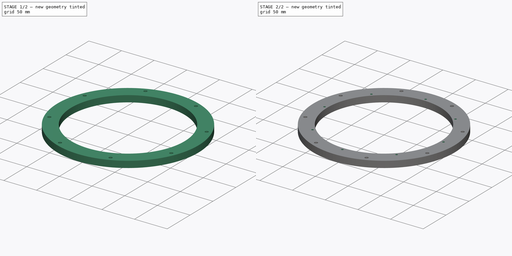
[diagram: build sequence overview — one tinted view per stage of 2, left to right]
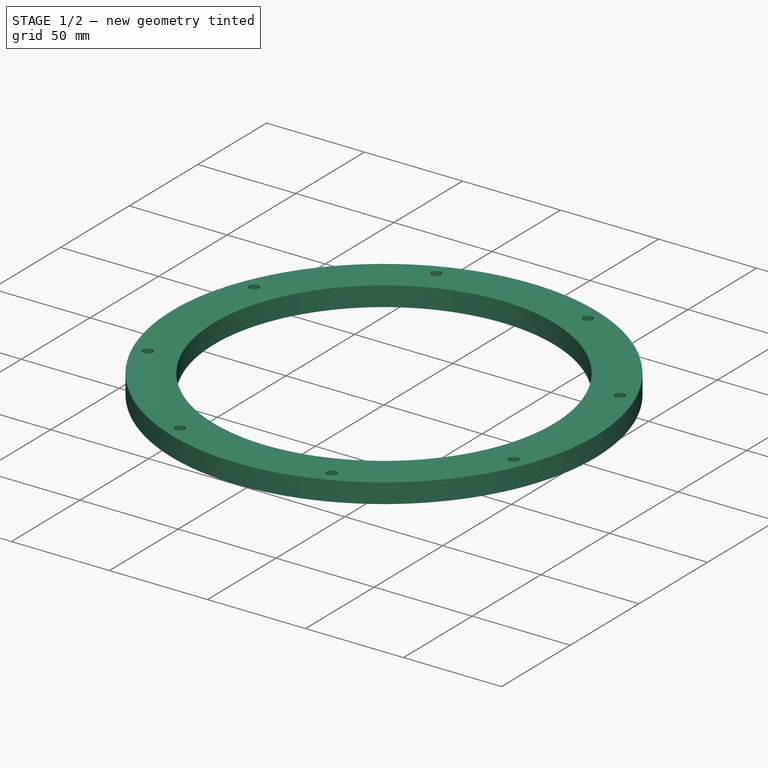
[diagram: stage 1 of 2 — iso view after this stage's code; geometry added in this stage tinted green]
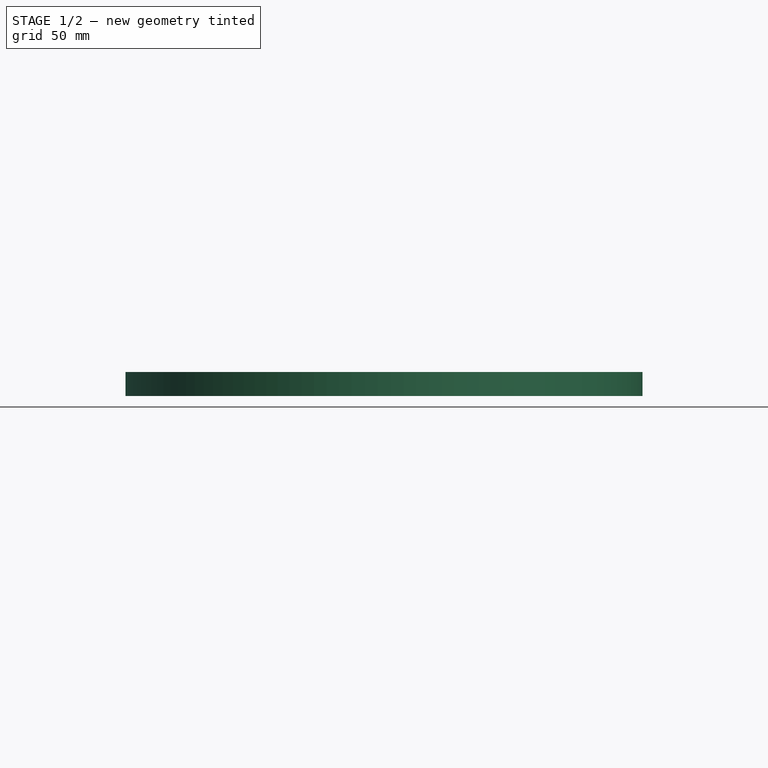
[diagram: stage 1 of 2 — front view after this stage's code; geometry added in this stage tinted green]
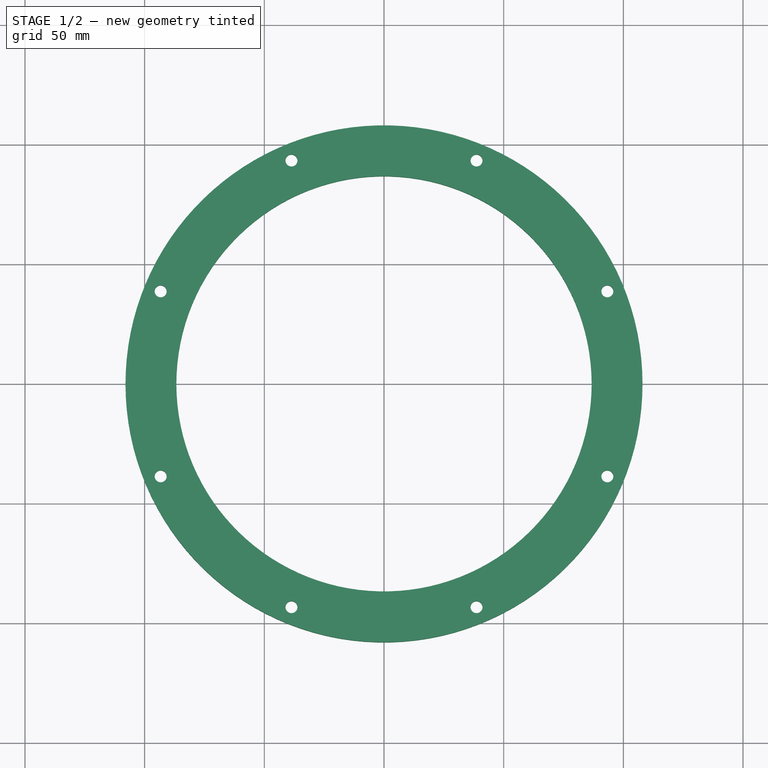
[diagram: stage 1 of 2 — top view after this stage's code; geometry added in this stage tinted green]
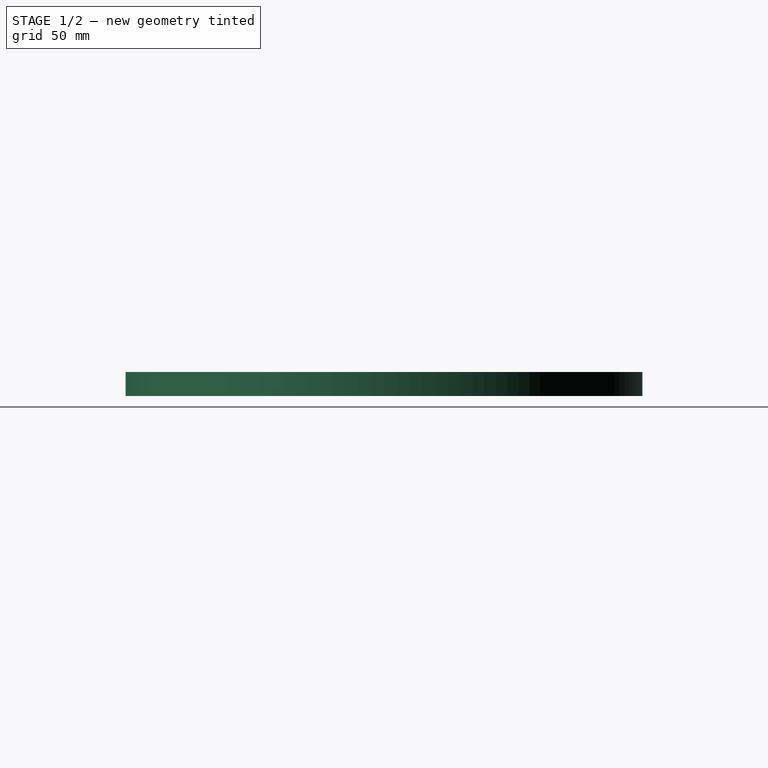
[diagram: stage 1 of 2 — right view after this stage's code; geometry added in this stage tinted green]
FCSTD DOCUMENT  (FreeCAD 0.19R24276 (Git))
Label: Out_gear_holder_for_CNC
License: All rights reserved
LicenseURL: http://en.wikipedia.org/wiki/All_rights_reserved
objects: Sketcher::SketchObject×2, PartDesign::Pad×1, PartDesign::Pocket×1, PartDesign::Body×1
note: 7 computed .brp shape members not serialized (recipe doc carries the construction recipe); baked Part::Feature solids carry a one-line shape summary decoded from their .brp

FEATURE [Sketcher::SketchObject] Sketch
  FullyConstrained = false
  MapMode = 5
  Support = -> [XY_Plane]
  sketch-geometry (17):
    g0: LineSegment StartX=0 StartY=0 StartZ=0 EndX=64.3467 EndY=64.3467 EndZ=0
    g1: Circle CenterX=0 CenterY=0 CenterZ=0 NormalX=0 NormalY=0 NormalZ=1 AngleXU=0 Radius=91
    g2: Circle CenterX=64.3467 CenterY=64.3467 CenterZ=0 NormalX=0 NormalY=0 NormalZ=1 AngleXU=0 Radius=1.5625
    g3: LineSegment StartX=0 StartY=0 StartZ=0 EndX=-1.5e-15 EndY=91 EndZ=0
    g4: LineSegment StartX=0 StartY=0 StartZ=0 EndX=91 EndY=0 EndZ=0
    g5: Circle CenterX=-1.5e-15 CenterY=91 CenterZ=0 NormalX=0 NormalY=0 NormalZ=1 AngleXU=0 Radius=1.5625
    g6: Circle CenterX=91 CenterY=0 CenterZ=0 NormalX=0 NormalY=0 NormalZ=1 AngleXU=0 Radius=1.5625
    g7: Circle CenterX=64.3467 CenterY=-64.3467 CenterZ=0 NormalX=0 NormalY=0 NormalZ=1 AngleXU=0 Radius=1.5625
    g8: Circle CenterX=-1.5e-15 CenterY=-91 CenterZ=0 NormalX=0 NormalY=0 NormalZ=1 AngleXU=0 Radius=1.5625
    g9: LineSegment StartX=0 StartY=0 StartZ=0 EndX=-1.5e-15 EndY=-91 EndZ=0
    g10: LineSegment StartX=0 StartY=0 StartZ=0 EndX=64.3467 EndY=-64.3467 EndZ=0
    g11: LineSegment StartX=0 StartY=0 StartZ=0 EndX=-64.3467 EndY=-64.3467 EndZ=0
    g12: LineSegment StartX=0 StartY=0 StartZ=0 EndX=-91 EndY=0 EndZ=0
    g13: LineSegment StartX=0 StartY=0 StartZ=0 EndX=-64.3467 EndY=64.3467 EndZ=0
    g14: Circle CenterX=-91 CenterY=0 CenterZ=0 NormalX=0 NormalY=0 NormalZ=1 AngleXU=0 Radius=1.5625
    g15: Circle CenterX=-64.3467 CenterY=-64.3467 CenterZ=0 NormalX=0 NormalY=0 NormalZ=1 AngleXU=0 Radius=1.5625
    g16: Circle CenterX=-64.3467 CenterY=64.3467 CenterZ=0 NormalX=0 NormalY=0 NormalZ=1 AngleXU=0 Radius=1.5625
  constraints (27):
    c: Coincident(g0,g-1)
    c: Coincident(g1,g-1)
    c: Diameter(g1) = 182
    c: PointOnObject(g0,g1)
    c: Coincident(g2,g0)
    c: Coincident(g3,g-1)
    c: Coincident(g4,g-1)
    c: PointOnObject(g4,g1)
    c: PointOnObject(g3,g1)
    c: Coincident(g5,g3)
    c: Coincident(g6,g4)
    c: Equal(g6,g2)
    c: Equal(g2,g5)
    c: Angle(g4,g-1) = 0
    c: Angle(g-1,g0) = 0.785398
    c: Angle(g0,g3) = 0.785398
    c: Coincident(g7,g10)
    c: Coincident(g8,g9)
    c: Equal(g7,g8)
    c: Angle(g10,g9) = -0.785398
    c: Coincident(g14,g12)
    c: Coincident(g15,g11)
    c: Diameter(g16) = 3.125
    c: Equal(g5,g16)
    c: Equal(g7,g6)
    c: Equal(g14,g16)
    c: Equal(g15,g14)
FEATURE [Sketcher::SketchObject] Sketch001
  FullyConstrained = false
  MapMode = 5
  Placement = pos=(0,0,0) rot=(1,0,0;3.14159rad)
  sketch-geometry (20):
    g0: Circle CenterX=0 CenterY=0 CenterZ=0 NormalX=0 NormalY=0 NormalZ=1 AngleXU=0 Radius=95
    g1: Circle CenterX=0 CenterY=0 CenterZ=0 NormalX=0 NormalY=0 NormalZ=1 AngleXU=0 Radius=86.75
    g2: Circle CenterX=0 CenterY=0 CenterZ=0 NormalX=0 NormalY=0 NormalZ=1 AngleXU=0 Radius=108
    g3: Circle CenterX=0 CenterY=0 CenterZ=0 NormalX=0 NormalY=0 NormalZ=1 AngleXU=0 Radius=101
    g4: LineSegment StartX=0 StartY=0 StartZ=0 EndX=93.3118 EndY=38.651 EndZ=0
    g5: LineSegment StartX=0 StartY=0 StartZ=0 EndX=-93.3118 EndY=38.651 EndZ=0
    g6: LineSegment StartX=0 StartY=0 StartZ=0 EndX=-93.3118 EndY=-38.651 EndZ=0
    g7: LineSegment StartX=0 StartY=0 StartZ=0 EndX=38.651 EndY=93.3118 EndZ=0
    g8: LineSegment StartX=0 StartY=0 StartZ=0 EndX=-38.651 EndY=-93.3118 EndZ=0
    g9: LineSegment StartX=0 StartY=0 StartZ=0 EndX=-38.651 EndY=93.3118 EndZ=0
    g10: LineSegment StartX=0 StartY=0 StartZ=0 EndX=38.651 EndY=-93.3118 EndZ=0
    g11: LineSegment StartX=0 StartY=0 StartZ=0 EndX=93.3118 EndY=-38.651 EndZ=0
    g12: Circle CenterX=38.651 CenterY=93.3118 CenterZ=0 NormalX=0 NormalY=0 NormalZ=1 AngleXU=0 Radius=2.5
    g13: Circle CenterX=93.3118 CenterY=38.651 CenterZ=0 NormalX=0 NormalY=0 NormalZ=1 AngleXU=0 Radius=2.5
    g14: Circle CenterX=93.3118 CenterY=-38.651 CenterZ=0 NormalX=0 NormalY=0 NormalZ=1 AngleXU=0 Radius=2.5
    g15: Circle CenterX=38.651 CenterY=-93.3118 CenterZ=0 NormalX=0 NormalY=0 NormalZ=1 AngleXU=0 Radius=2.5
    g16: Circle CenterX=-38.651 CenterY=93.3118 CenterZ=0 NormalX=0 NormalY=0 NormalZ=1 AngleXU=0 Radius=2.5
    g17: Circle CenterX=-93.3118 CenterY=38.651 CenterZ=0 NormalX=0 NormalY=0 NormalZ=1 AngleXU=0 Radius=2.5
    g18: Circle CenterX=-93.3118 CenterY=-38.651 CenterZ=0 NormalX=0 NormalY=0 NormalZ=1 AngleXU=0 Radius=2.5
    g19: Circle CenterX=-38.651 CenterY=-93.3118 CenterZ=0 NormalX=0 NormalY=0 NormalZ=1 AngleXU=0 Radius=2.5
  constraints (44):
    c: Coincident(g0,g-1)
    c: Diameter(g0) = 190
    c: Coincident(g1,g0)
    c: Diameter(g1) = 173.5
    c: Coincident(g2,g1)
    c: Diameter(g2) = 216
    c: Coincident(g3,g1)
    c: Diameter(g3) = 202
    c: Coincident(g4,g1)
    c: Coincident(g5,g1)
    c: Coincident(g6,g1)
    c: Parallel(g6,g4)
    c: Coincident(g7,g1)
    c: Coincident(g8,g1)
    c: Parallel(g8,g7)
    c: Coincident(g9,g1)
    c: Coincident(g10,g1)
    c: Parallel(g10,g9)
    c: PointOnObject(g7,g3)
    c: PointOnObject(g4,g3)
    c: PointOnObject(g9,g3)
    c: PointOnObject(g5,g3)
    c: PointOnObject(g6,g3)
    c: PointOnObject(g8,g3)
    c: PointOnObject(g10,g3)
    c: Coincident(g11,g1)
    c: Parallel(g5,g11)
    c: PointOnObject(g11,g3)
    c: Angle(g-1,g4) = 0.392699
    c: Angle(g4,g7) = 0.785398
    c: Angle(g11,g-1) = 0.392699
    c: Angle(g10,g11) = 0.785398
    c: Coincident(g12,g7)
    c: Coincident(g13,g4)
    c: Coincident(g14,g11)
    c: Coincident(g15,g10)
    c: Diameter(g15) = 5
    c: Equal(g15,g14)
    c: Equal(g15,g13)
    c: Equal(g15,g12)
    c: Diameter(g19) = 5
    c: Equal(g19,g18)
    c: Equal(g19,g17)
    c: Equal(g19,g16)
FEATURE [PartDesign::Pad] Pad
  Direction = (1,1,1)
  Length = 10
  Length2 = 100
  Placement = pos=(0,0,0) rot=(1,0,0;3.14159rad)
  Profile = -> Sketch001
  Type = 0
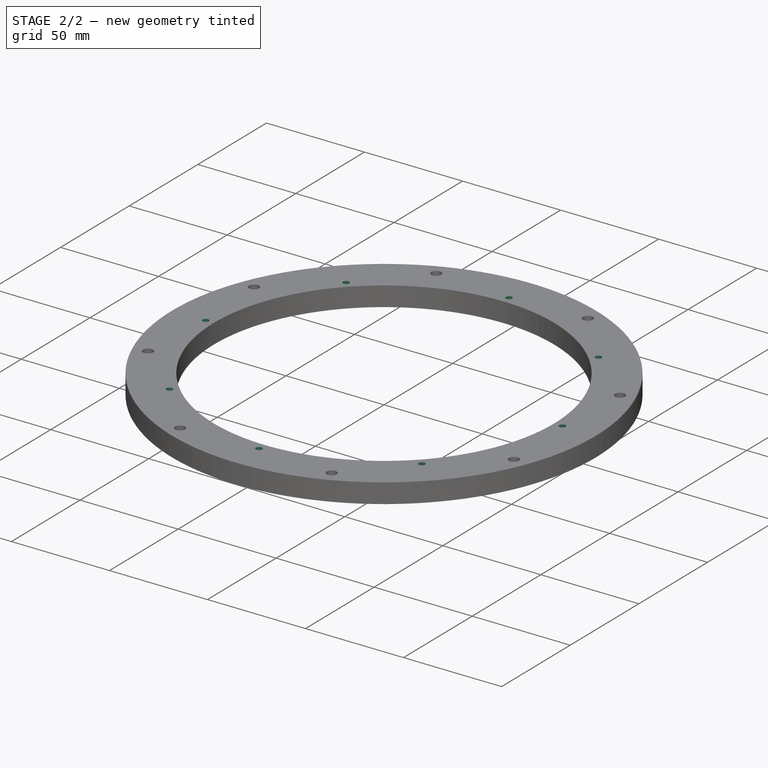
[diagram: stage 2 of 2 — iso view after this stage's code; geometry added in this stage tinted green]
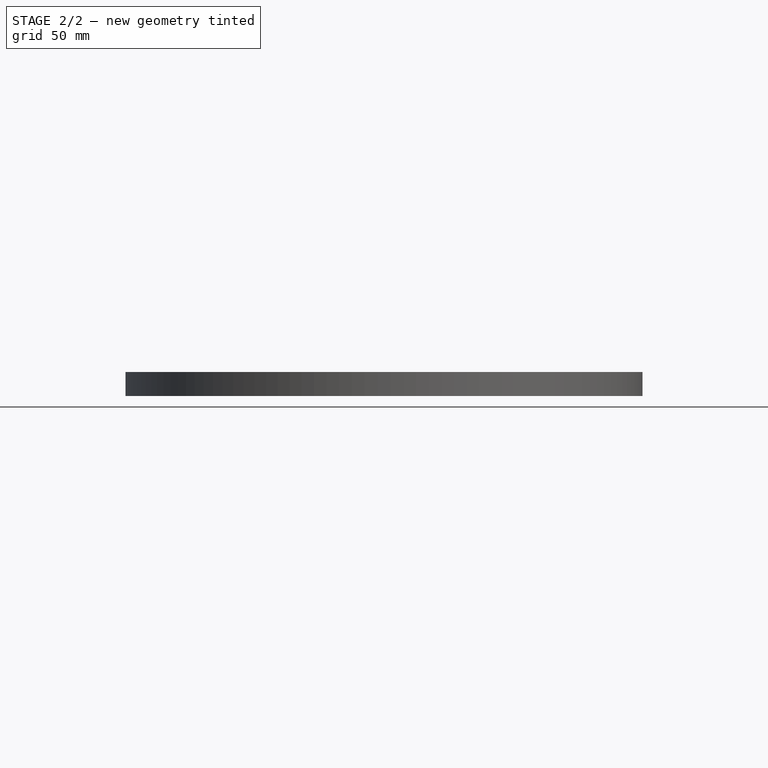
[diagram: stage 2 of 2 — front view after this stage's code; geometry added in this stage tinted green]
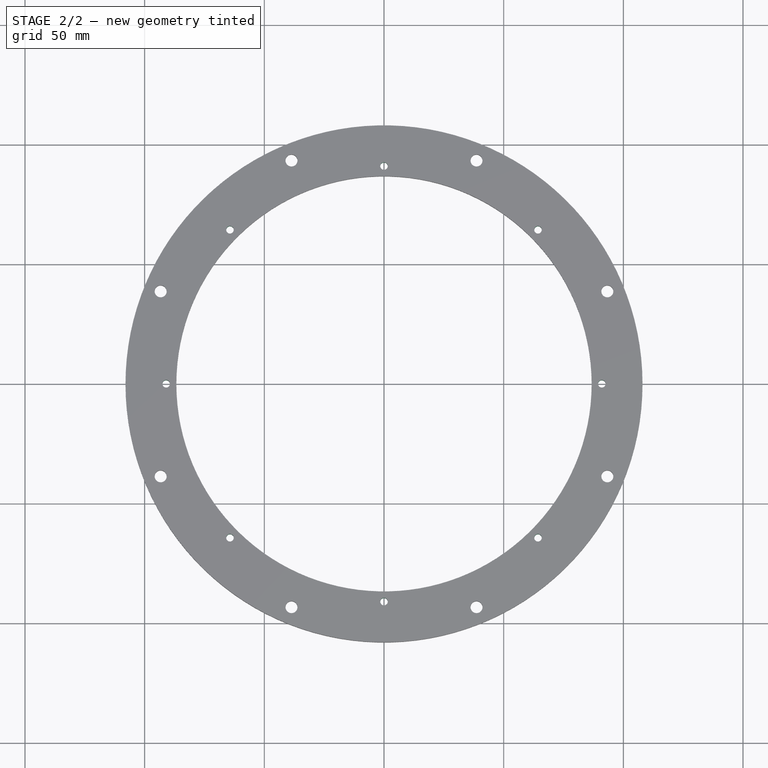
[diagram: stage 2 of 2 — top view after this stage's code; geometry added in this stage tinted green]
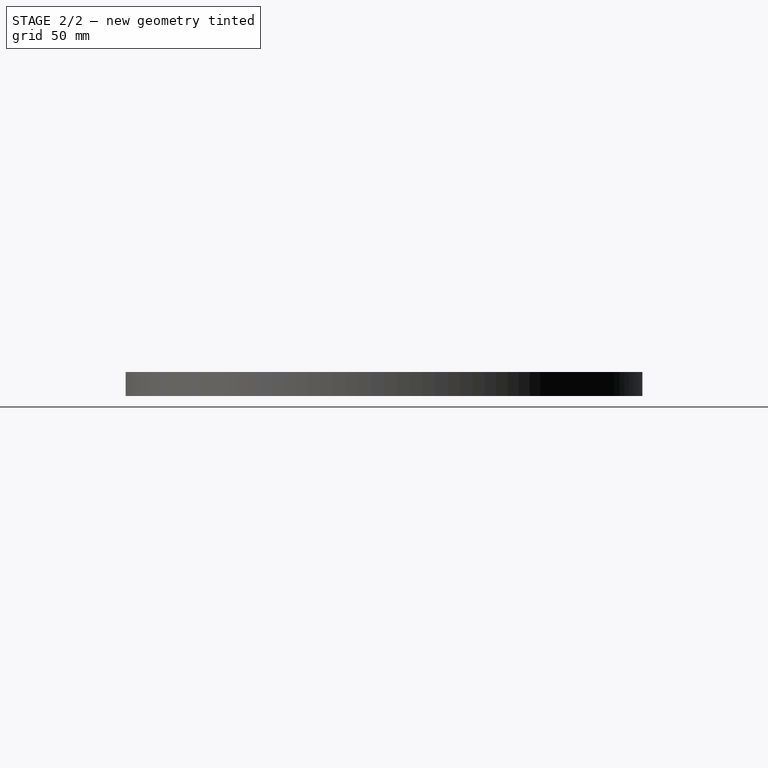
[diagram: stage 2 of 2 — right view after this stage's code; geometry added in this stage tinted green]
FEATURE [PartDesign::Pocket] Pocket
  BaseFeature = -> Pad
  Length = 5
  Length2 = 100
  Midplane = true
  Placement = pos=(0,0,0) rot=(1,0,0;3.14159rad)
  Profile = -> Sketch
  Type = 1
FEATURE [PartDesign::Body] Body
  Group = -> [Sketch001,Pad,Sketch,Pocket]
  Origin = -> Origin
  Tip = -> Pocket
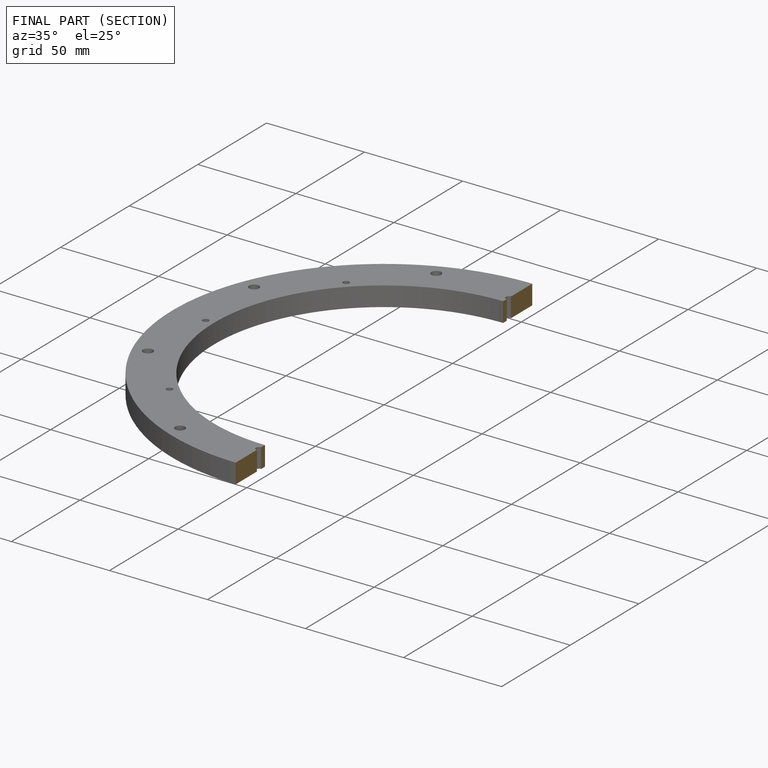
[diagram: finished part — half-section view (interior)]
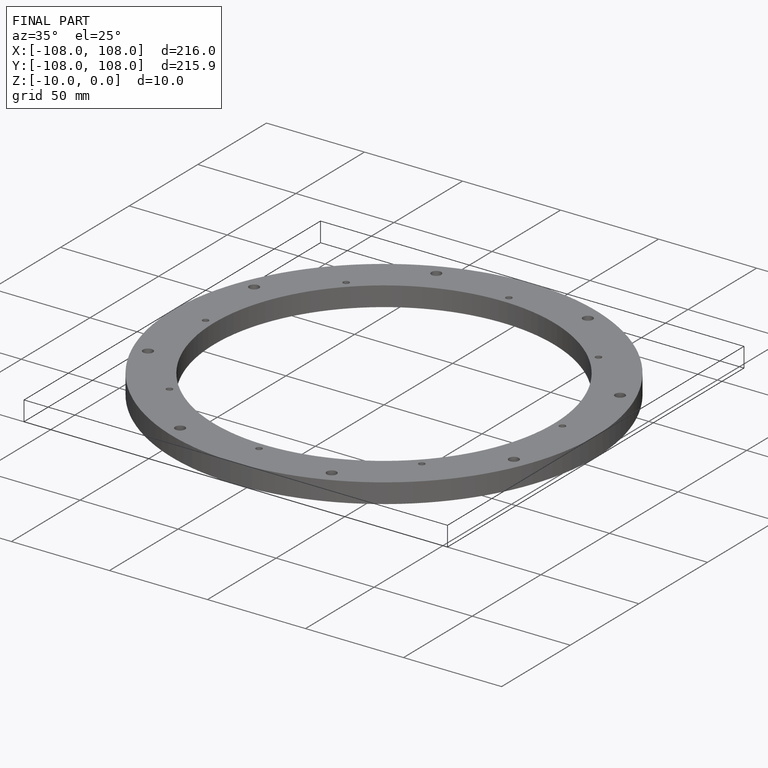
[diagram: finished part — iso view with bounding-box wireframe]
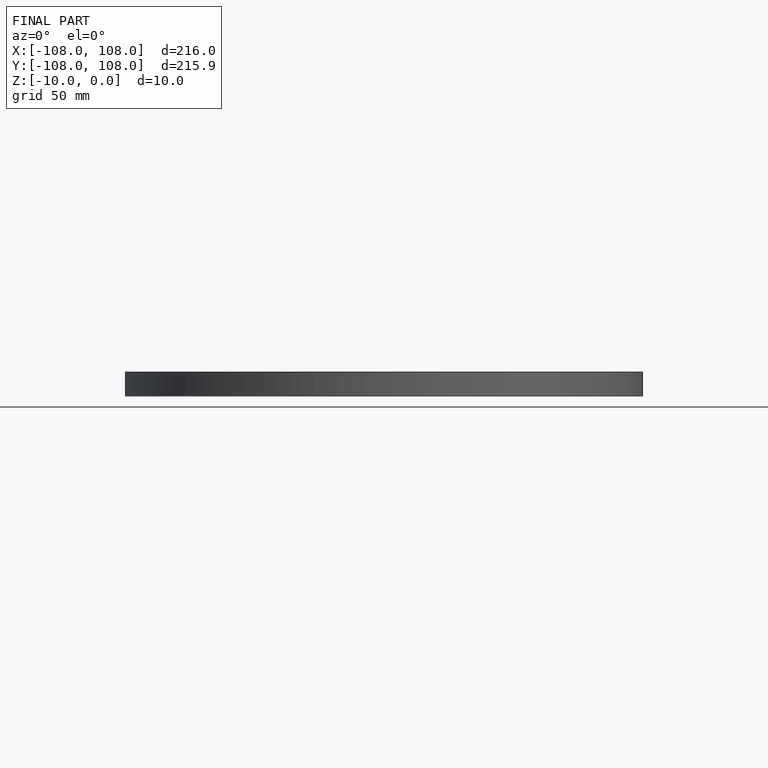
[diagram: finished part — front view with bounding-box wireframe]
